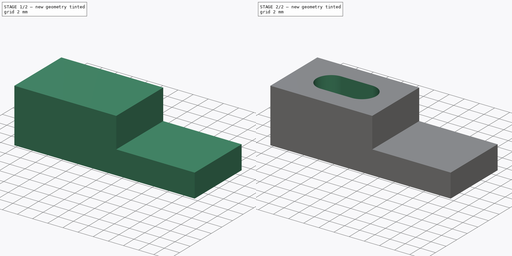
[diagram: build sequence overview — one tinted view per stage of 2, left to right]
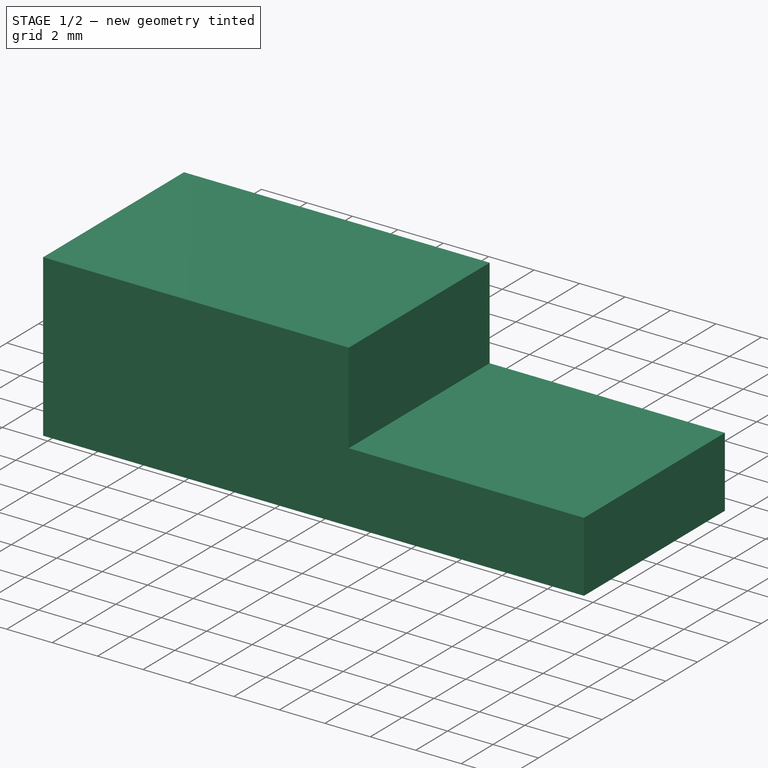
[diagram: stage 1 of 2 — iso view after this stage's code; geometry added in this stage tinted green]
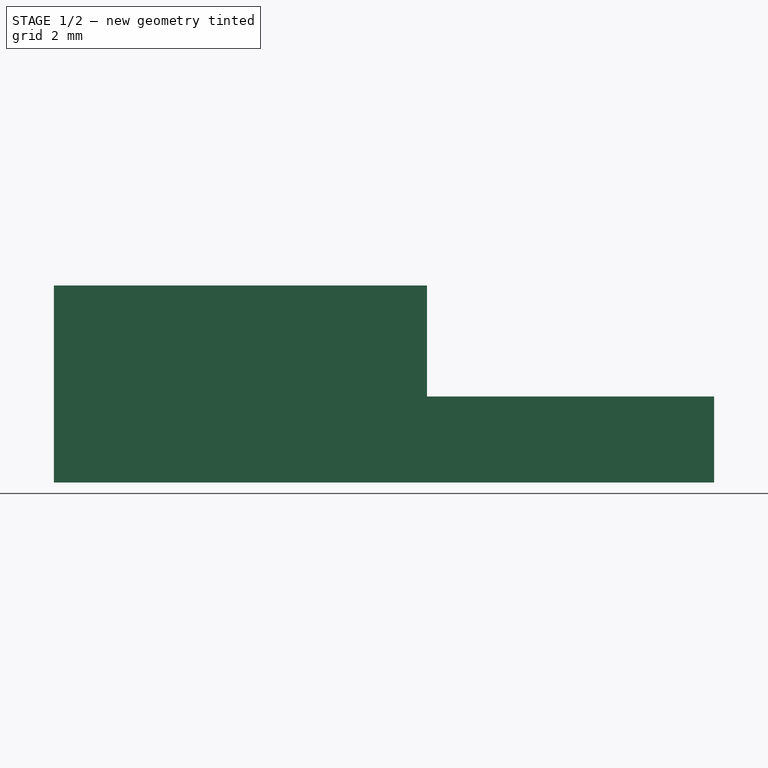
[diagram: stage 1 of 2 — front view after this stage's code; geometry added in this stage tinted green]
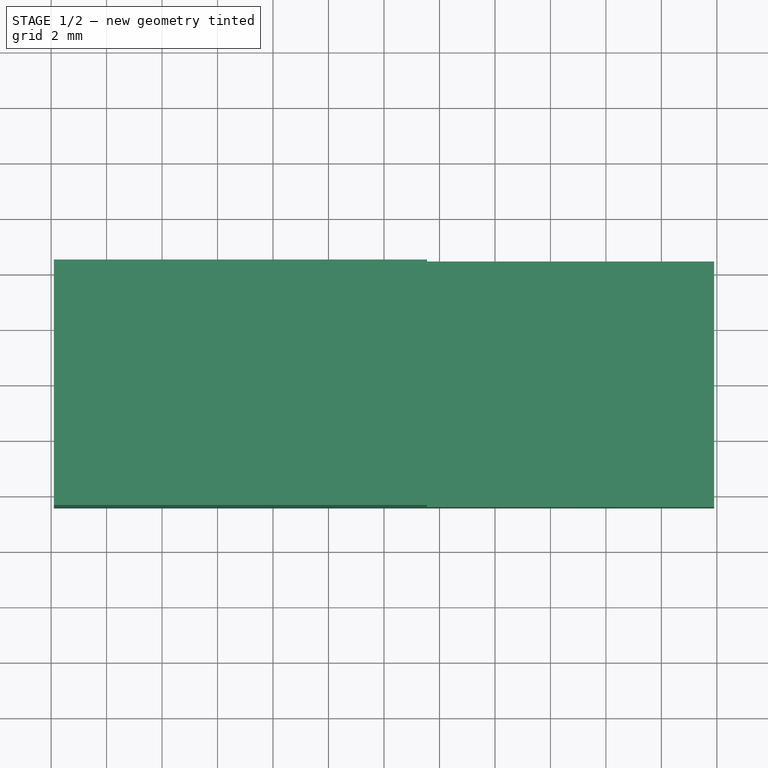
[diagram: stage 1 of 2 — top view after this stage's code; geometry added in this stage tinted green]
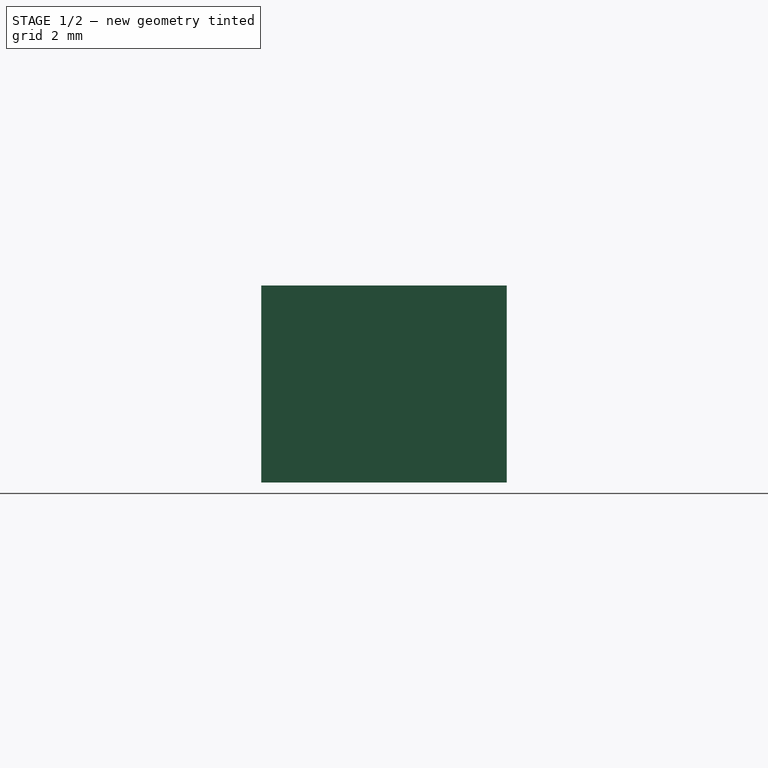
[diagram: stage 1 of 2 — right view after this stage's code; geometry added in this stage tinted green]
FCSTD DOCUMENT  (FreeCAD 0.16R)
Label: soporte cristal ducha
License: All rights reserved
LicenseURL: http://en.wikipedia.org/wiki/All_rights_reserved
objects: Sketcher::SketchObject×4, PartDesign::Pocket×3, PartDesign::Pad×1
note: 12 computed .brp shape members not serialized (recipe doc carries the construction recipe); baked Part::Feature solids carry a one-line shape summary decoded from their .brp

FEATURE [Sketcher::SketchObject] Sketch
  sketch-geometry (4):
    g0: LineSegment StartX=-11.9 StartY=4.425 StartZ=0 EndX=11.9 EndY=4.425 EndZ=0
    g1: LineSegment StartX=11.9 StartY=4.425 StartZ=0 EndX=11.9 EndY=-4.425 EndZ=0
    g2: LineSegment StartX=11.9 StartY=-4.425 StartZ=0 EndX=-11.9 EndY=-4.425 EndZ=0
    g3: LineSegment StartX=-11.9 StartY=-4.425 StartZ=0 EndX=-11.9 EndY=4.425 EndZ=0
  constraints (12):
    c: Coincident(g0,g1)
    c: Coincident(g1,g2)
    c: Coincident(g2,g3)
    c: Coincident(g3,g0)
    c: Horizontal(g0)
    c: Horizontal(g2)
    c: Vertical(g1)
    c: Vertical(g3)
    c: DistanceX(g2,g2) = 23.8
    c: DistanceY(g3,g3) = 8.85
    c: Symmetric(g2,g1,g-2)
    c: Symmetric(g1,g0,g-1)
FEATURE [PartDesign::Pad] Pad
  Length = 7.1
  Length2 = 100
  Sketch = -> Sketch
  Type = 0
FEATURE [Sketcher::SketchObject] Sketch001
  ExternalGeometry = -> [Pad]
  Placement = pos=(0,0,7.1) rot=(0,0,1;0rad)
  Support = -> Pad [Face6]
  sketch-geometry (4):
    g0: LineSegment StartX=1.55 StartY=4.425 StartZ=0 EndX=11.9 EndY=4.425 EndZ=0
    g1: LineSegment StartX=11.9 StartY=4.425 StartZ=0 EndX=11.9 EndY=-4.425 EndZ=0
    g2: LineSegment StartX=11.9 StartY=-4.425 StartZ=0 EndX=1.55 EndY=-4.425 EndZ=0
    g3: LineSegment StartX=1.55 StartY=-4.425 StartZ=0 EndX=1.55 EndY=4.425 EndZ=0
  constraints (11):
    c: Coincident(g0,g1)
    c: Coincident(g1,g2)
    c: Coincident(g2,g3)
    c: Coincident(g3,g0)
    c: Horizontal(g0)
    c: Horizontal(g2)
    c: Vertical(g1)
    c: Vertical(g3)
    c: Coincident(g0,g-3)
    c: Coincident(g1,g-3)
    c: DistanceX(g0,g0) = 10.35
FEATURE [PartDesign::Pocket] Pocket
  Length = 4
  Sketch = -> Sketch001
  Type = 0
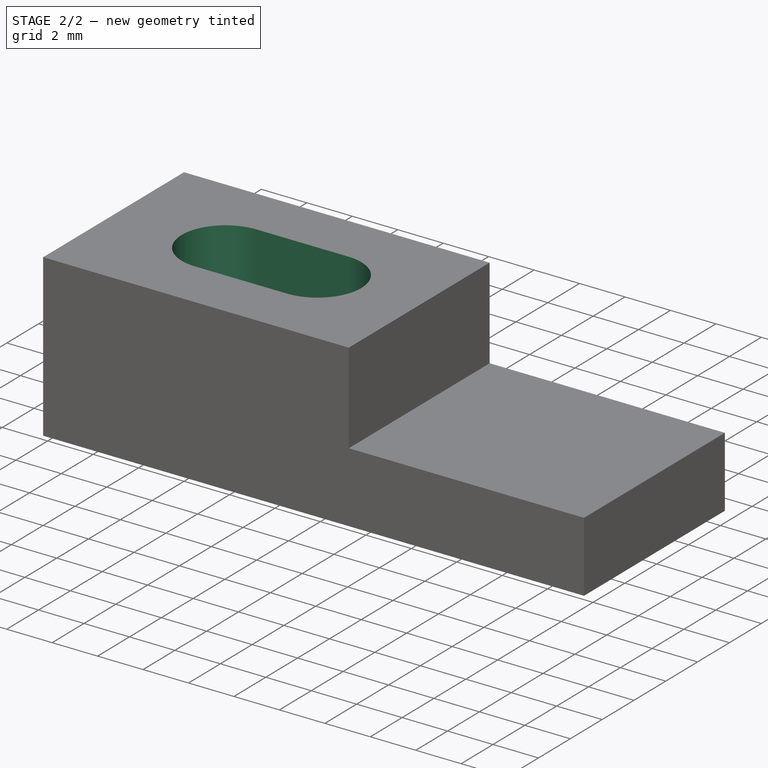
[diagram: stage 2 of 2 — iso view after this stage's code; geometry added in this stage tinted green]
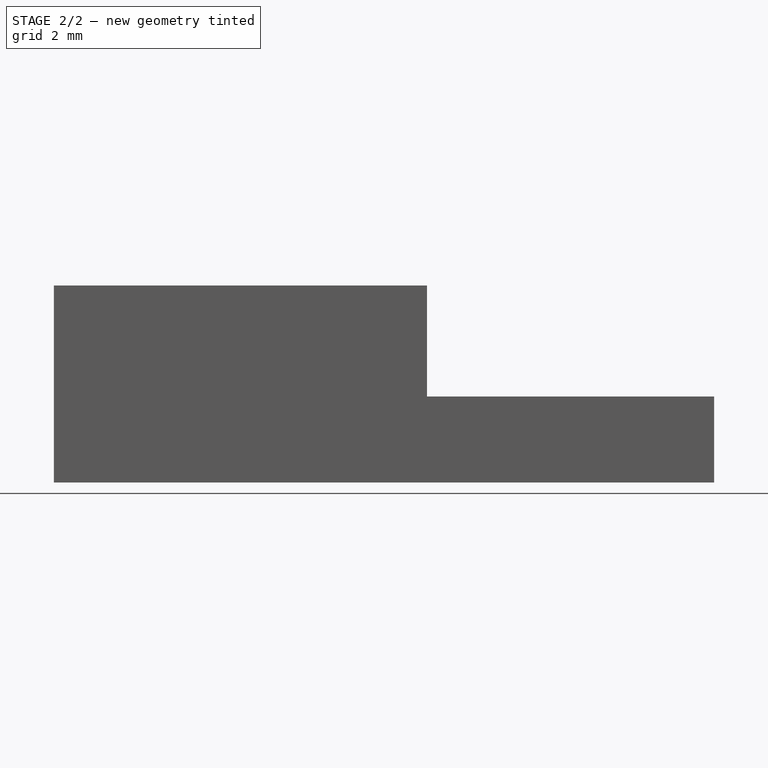
[diagram: stage 2 of 2 — front view after this stage's code; geometry added in this stage tinted green]
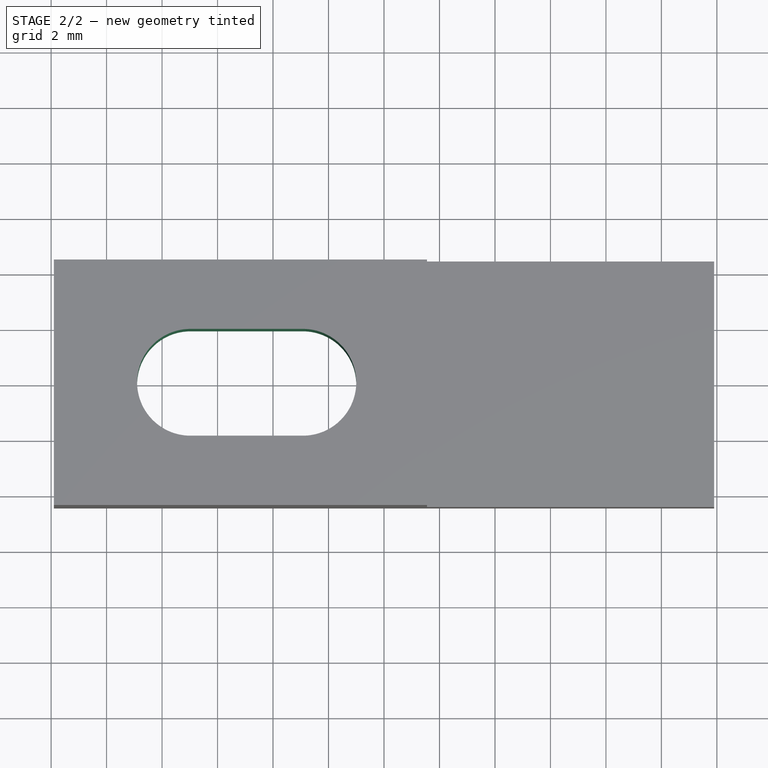
[diagram: stage 2 of 2 — top view after this stage's code; geometry added in this stage tinted green]
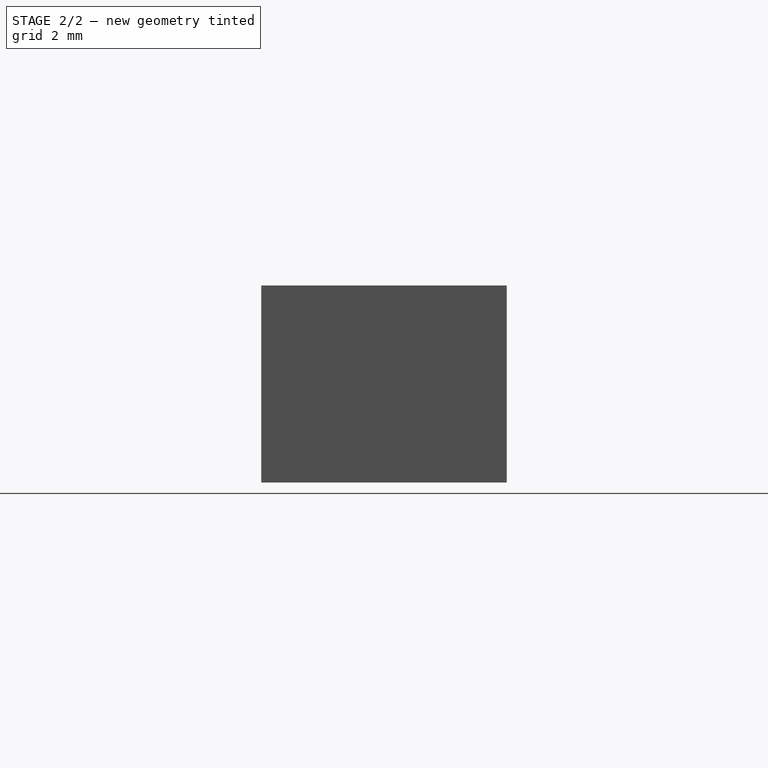
[diagram: stage 2 of 2 — right view after this stage's code; geometry added in this stage tinted green]
FEATURE [Sketcher::SketchObject] Sketch002
  ExternalGeometry = -> [Pocket]
  Placement = pos=(0,0,7.1) rot=(0,0,1;0rad)
  Support = -> Pocket [Face6]
  sketch-geometry (5):
    g0: ArcOfCircle CenterX=-6.975 CenterY=0 CenterZ=0 NormalX=0 NormalY=0 NormalZ=1 Radius=1.925 StartAngle=1.5708 EndAngle=4.71239
    g1: ArcOfCircle CenterX=-2.925 CenterY=0 CenterZ=0 NormalX=0 NormalY=0 NormalZ=1 Radius=1.925 StartAngle=4.71239 EndAngle=7.85398
    g2: LineSegment StartX=-6.975 StartY=-1.925 StartZ=0 EndX=-2.925 EndY=-1.925 EndZ=0
    g3: LineSegment StartX=-6.975 StartY=1.925 StartZ=0 EndX=-2.925 EndY=1.925 EndZ=0
    g4: LineSegment [constr] StartX=-8.9 StartY=0 StartZ=0 EndX=-1 EndY=0 EndZ=0
  constraints (14):
    c: Tangent(g0,g3) = 1.5708
    c: Tangent(g0,g2) = -1.5708
    c: Tangent(g2,g1) = -1.5708
    c: Tangent(g3,g1) = 1.5708
    c: Horizontal(g2)
    c: Equal(g0,g1)
    c: PointOnObject(g0,g-1)
    c: DistanceY(g0,g-3) = 2.5
    c: PointOnObject(g4,g-1)
    c: PointOnObject(g4,g-1)
    c: PointOnObject(g4,g0)
    c: PointOnObject(g4,g1)
    c: DistanceX(g-3,g4) = 3
    c: DistanceX(g4,g4) = 7.9
FEATURE [PartDesign::Pocket] Pocket001
  Length = 5
  Sketch = -> Sketch002
  Type = 1
FEATURE [Sketcher::SketchObject] Sketch003
  ExternalGeometry = -> [Pocket001]
  Placement = pos=(0,0,0) rot=(1,0,0;3.14159rad)
  Support = -> Pocket001 [Face2]
  sketch-geometry (5):
    g0: ArcOfCircle CenterX=-6.8 CenterY=0 CenterZ=0 NormalX=0 NormalY=0 NormalZ=1 Radius=3.6 StartAngle=1.5708 EndAngle=4.71239
    g1: ArcOfCircle CenterX=-3.36 CenterY=0 CenterZ=0 NormalX=0 NormalY=0 NormalZ=1 Radius=3.6 StartAngle=4.71239 EndAngle=7.85398
    g2: LineSegment StartX=-6.8 StartY=-3.6 StartZ=0 EndX=-3.36 EndY=-3.6 EndZ=0
    g3: LineSegment StartX=-6.8 StartY=3.6 StartZ=0 EndX=-3.36 EndY=3.6 EndZ=0
    g4: LineSegment [constr] StartX=-10.4 StartY=0 StartZ=0 EndX=0.24 EndY=0 EndZ=0
  constraints (14):
    c: Tangent(g0,g3) = 1.5708
    c: Tangent(g0,g2) = -1.5708
    c: Tangent(g2,g1) = -1.5708
    c: Tangent(g3,g1) = 1.5708
    c: Horizontal(g2)
    c: Equal(g0,g1)
    c: PointOnObject(g0,g-1)
    c: DistanceY(g0,g0) = 7.2
    c: PointOnObject(g4,g-1)
    c: PointOnObject(g4,g-1)
    c: PointOnObject(g4,g0)
    c: PointOnObject(g4,g1)
    c: DistanceX(g-8,g4) = 1.5
    c: DistanceX(g4,g4) = 10.64
FEATURE [PartDesign::Pocket] Pocket002
  Length = 2
  Sketch = -> Sketch003
  Type = 0
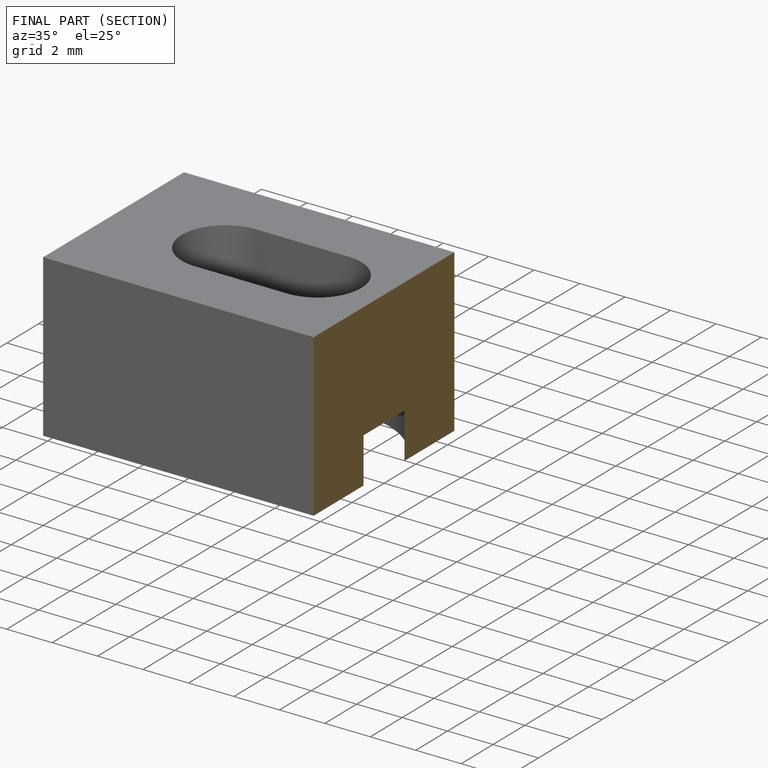
[diagram: finished part — half-section view (interior)]
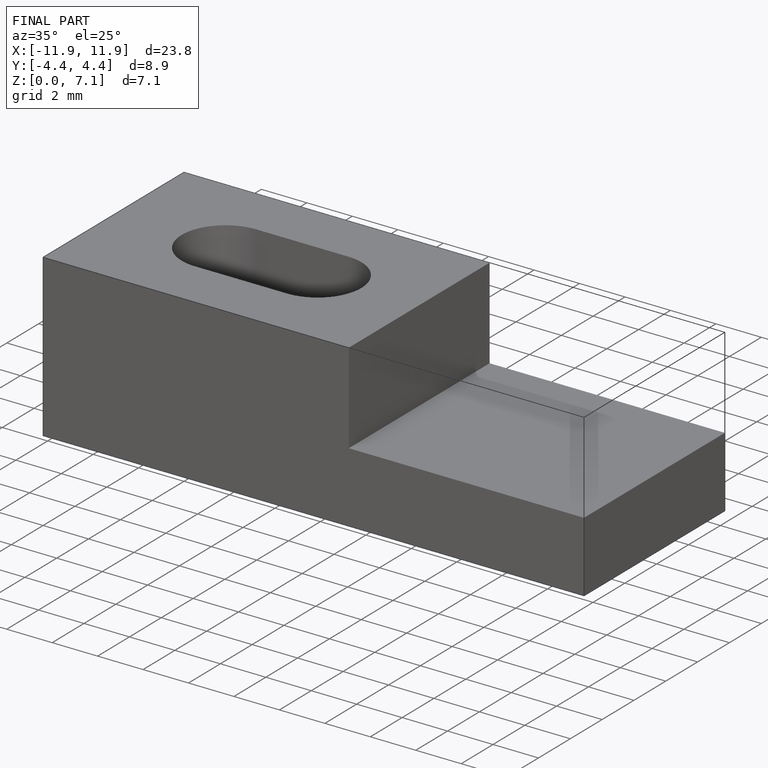
[diagram: finished part — iso view with bounding-box wireframe]
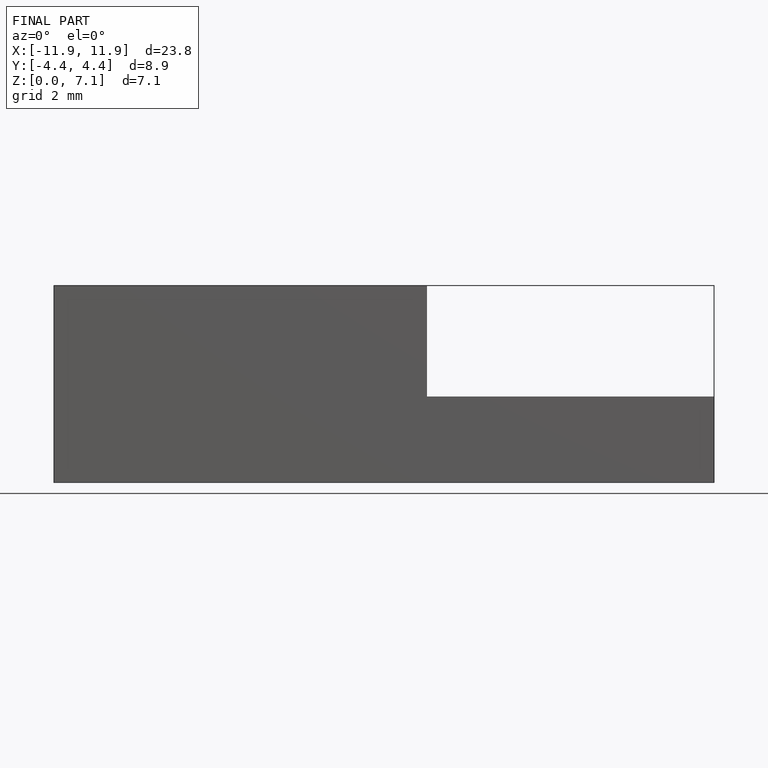
[diagram: finished part — front view with bounding-box wireframe]
